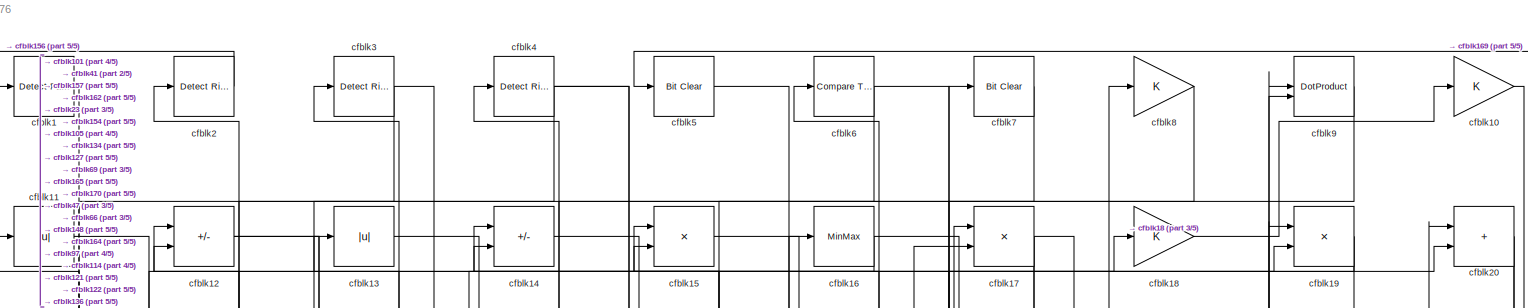
[diagram: root canvas - part 1/5, full width, top band]
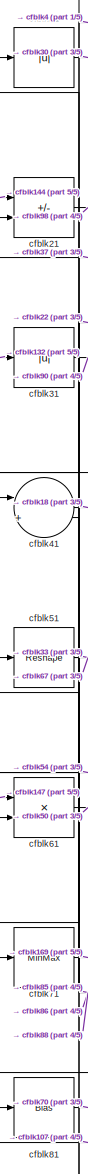
[diagram: root canvas - part 2/5, top left region]
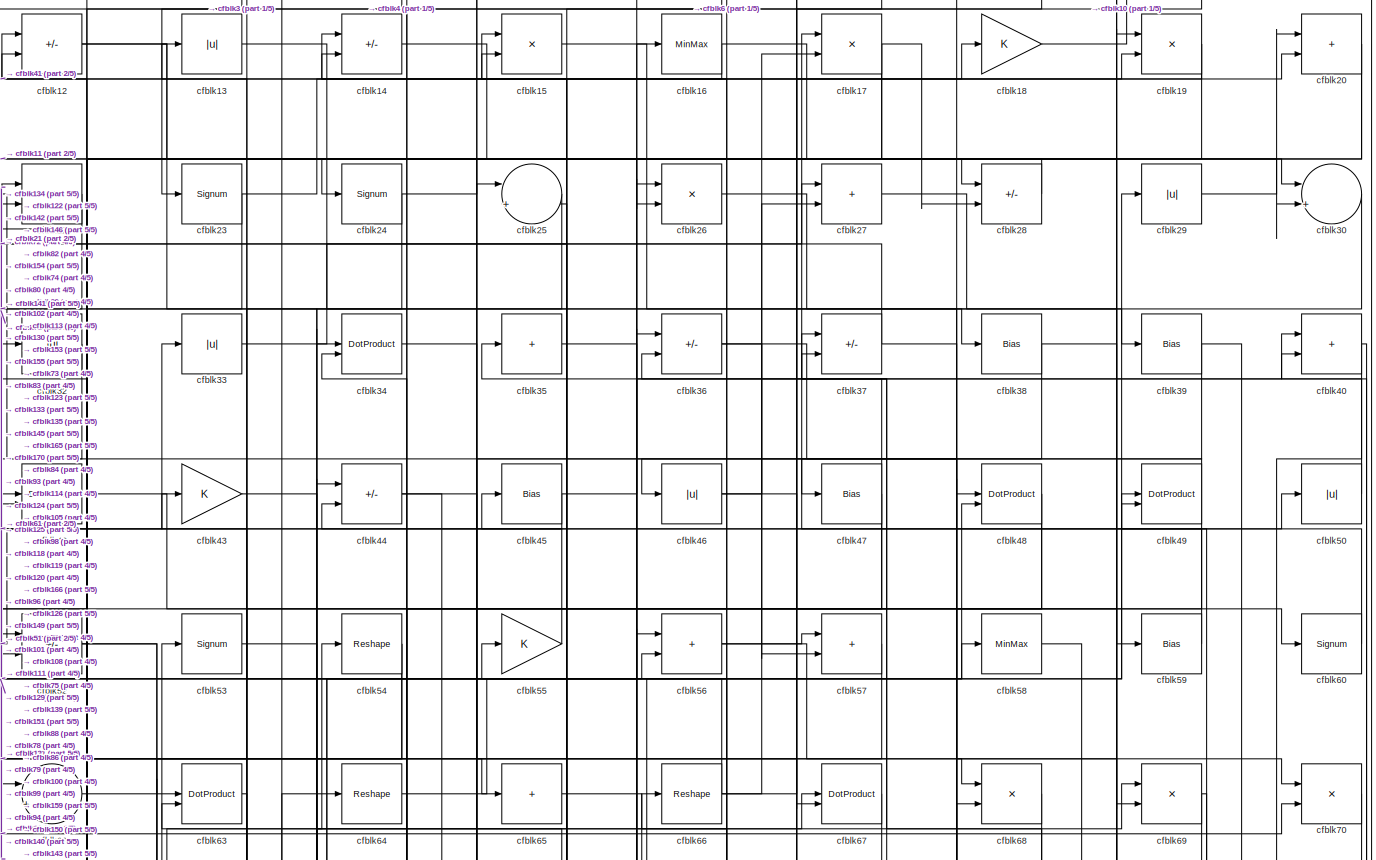
[diagram: root canvas - part 3/5, full width, top band]
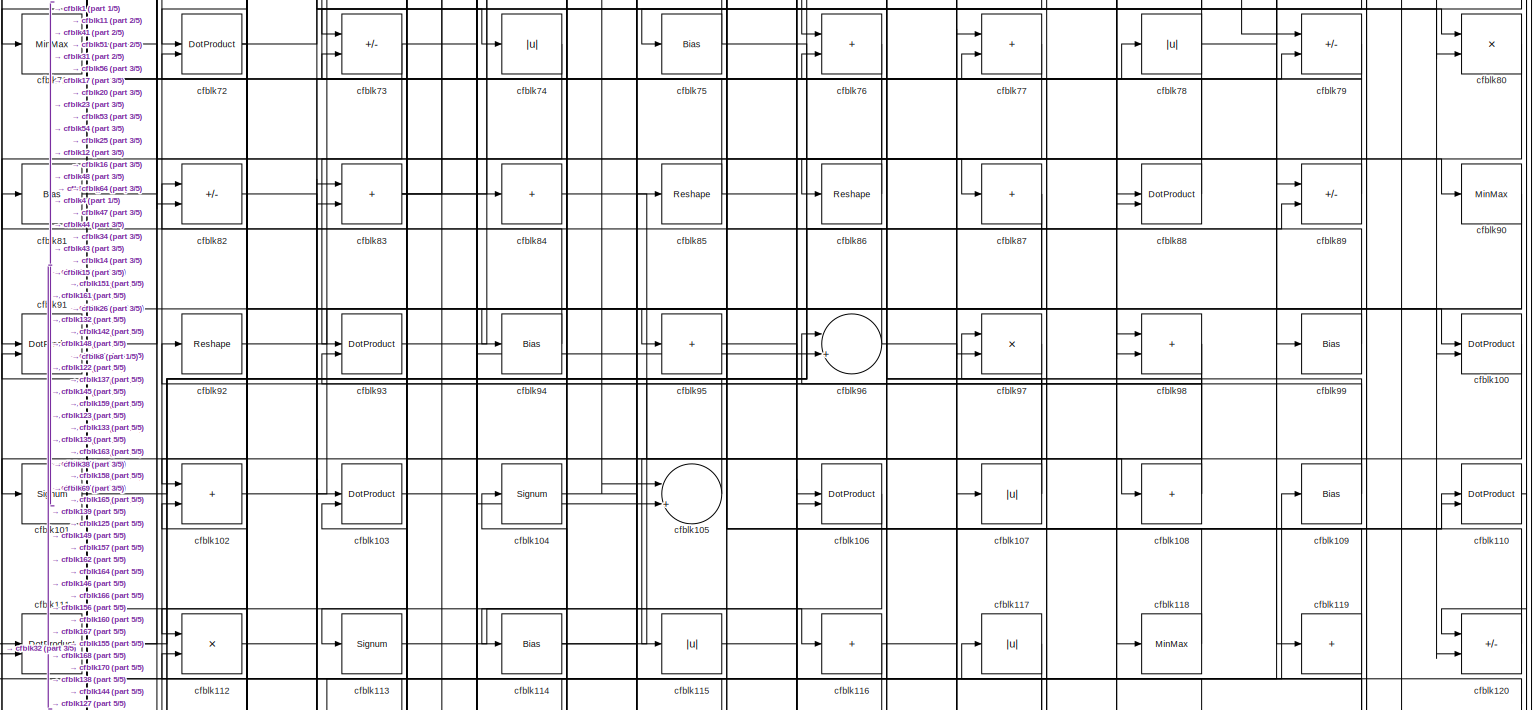
[diagram: root canvas - part 4/5, full width, middle band]
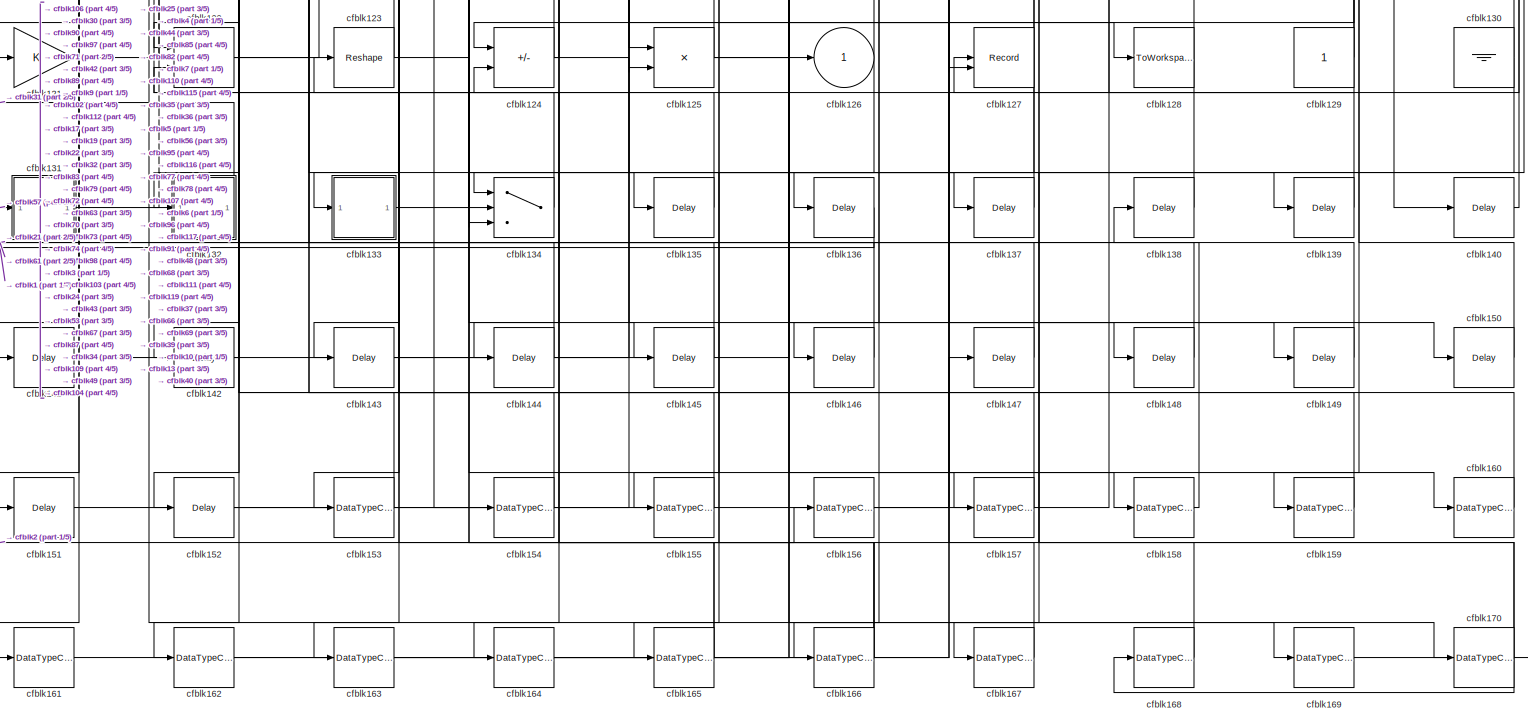
[diagram: root canvas - part 5/5, full width, bottom band]
MODEL slx_1f1a1caf4376
KIND model
CONFIG AbsTol = auto
CONFIG EnableMultiTasking = off
CONFIG FixedStep = auto
CONFIG MaxStep = auto
CONFIG MinStep = auto
CONFIG RelTol = 1e-3
CONFIG SampleTimeConstraint = Unconstrained
CONFIG SolverName = VariableStepAuto
CONFIG StartTime = 0.0
CONFIG StopTime = 10.0
BLOCK [Reference] cfblk1  REF=hdlsllib/Logic and Bit
Operations/Detect Fall
Negative
  SourceBlock = hdlsllib/Logic and Bit\nOperations/Detect Fall\nNegative
  SourceType = Detect Fall Negative
BLOCK [Gain] cfblk10
BLOCK [DotProduct] cfblk100
  OutDataTypeStr = Inherit: Inherit via internal rule
BLOCK [Signum] cfblk101
BLOCK [Sum] cfblk102
  IconShape = rectangular
BLOCK [DotProduct] cfblk103
  OutDataTypeStr = Inherit: Inherit via internal rule
BLOCK [Signum] cfblk104
BLOCK [Sum] cfblk105
  Inputs = |++
BLOCK [DotProduct] cfblk106
  OutDataTypeStr = Inherit: Inherit via internal rule
BLOCK [Abs] cfblk107
  SaturateOnIntegerOverflow = off
BLOCK [Sum] cfblk108
  IconShape = rectangular
  Inputs = +
BLOCK [Bias] cfblk109
  Bias = 0.0
  SaturateOnIntegerOverflow = off
BLOCK [Abs] cfblk11
  SaturateOnIntegerOverflow = off
BLOCK [DotProduct] cfblk110
  OutDataTypeStr = Inherit: Inherit via internal rule
BLOCK [DotProduct] cfblk111
  OutDataTypeStr = Inherit: Inherit via internal rule
BLOCK [Product] cfblk112
  Inputs = */
  RndMeth = Zero
  SaturateOnIntegerOverflow = on
BLOCK [Signum] cfblk113
BLOCK [Bias] cfblk114
  Bias = 0.0
  SaturateOnIntegerOverflow = off
BLOCK [Abs] cfblk115
  SaturateOnIntegerOverflow = off
BLOCK [Sum] cfblk116
  IconShape = rectangular
  Inputs = +
BLOCK [Abs] cfblk117
  SaturateOnIntegerOverflow = off
BLOCK [MinMax] cfblk118
BLOCK [Sum] cfblk119
  IconShape = rectangular
  Inputs = +
BLOCK [Sum] cfblk12
  IconShape = rectangular
  Inputs = +-
BLOCK [Sum] cfblk120
  IconShape = rectangular
  Inputs = +-
BLOCK [Gain] cfblk121
BLOCK [Product] cfblk122
  Inputs = */
  RndMeth = Zero
  SaturateOnIntegerOverflow = on
BLOCK [Reshape] cfblk123
BLOCK [Sum] cfblk124
  IconShape = rectangular
  Inputs = +-
BLOCK [Product] cfblk125
  Inputs = */
  RndMeth = Zero
  SaturateOnIntegerOverflow = on
BLOCK [Outport] cfblk126
  VectorParamsAs1DForOutWhenUnconnected = off
BLOCK [Record] cfblk127
  CompatibilityTag = XY
  FileSettingsInternal = {"entries":[{"content":{"excelSettings":{"content":{},"type":"Streamout.ExcelSettings"}},"type":"Streamout.FileSettingStorage","uuid":""}],"packageUris":["http:\/\/schema.mathworks.com\/mf0\/streamout_blocks\/R2020a"],"version":"1.0"}
  Layout = [1 1]
  SignalsInternal = {"entries":[{"content":{"signals":[{"content":{"blockPath":[],"dimensions":[1],"domain":"","lineColor":"#a2142f","plots":[1],"port":1,"sid":[""],"signalID":4701,"signalName":"cfblk110"},"type":"RecordBlkView.Signal","uuid":""},{"content":{"blockPath":[],"dimensions":[1],"domain":"","lineColor":"#139fff","plots":[1],"port":2,"sid":[""],"signalID":4705,"signalName":"cfblk4"},"type":"RecordBlkView.Si...<+162ch>
  VisualizationBindings = {"xyplotplugin":{"info":[{"series":[{"bindingParametersList":[{"parameter":"X-Axis","signalID":4701,"signalName":"cfblk110"},{"parameter":"Y-Axis","signalID":4705,"signalName":"cfblk4"}],"seriesID":2669}],"subplotID":1}]}}
  st = -1
BLOCK [ToWorkspace] cfblk128
  MaxDataPoints = inf
  SampleTime = -1
  SaveFormat = Timeseries
  VariableName = simout
BLOCK [Constant] cfblk129
  SampleTime = -1
BLOCK [Abs] cfblk13
  SaturateOnIntegerOverflow = off
BLOCK [Ground] cfblk130
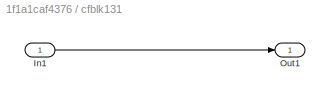
BLOCK [SubSystem] cfblk131
  LibrarySourceBlock = hdlsllib/Ports &\nSubsystems/Subsystem
BLOCK [Inport] cfblk131/In1
BLOCK [Outport] cfblk131/Out1
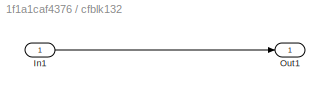
BLOCK [SubSystem] cfblk132
  LibrarySourceBlock = hdlsllib/Ports &\nSubsystems/Subsystem
BLOCK [Inport] cfblk132/In1
BLOCK [Outport] cfblk132/Out1
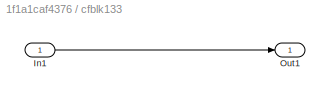
BLOCK [SubSystem] cfblk133
  LibrarySourceBlock = hdlsllib/Ports &\nSubsystems/Subsystem
BLOCK [Inport] cfblk133/In1
BLOCK [Outport] cfblk133/Out1
BLOCK [Switch] cfblk134
  InputSameDT = off
  SaturateOnIntegerOverflow = off
BLOCK [Delay] cfblk135
  InputPortMap = u0
  SampleTime = 1
BLOCK [Delay] cfblk136
  InputPortMap = u0
  SampleTime = 1
BLOCK [Delay] cfblk137
  InputPortMap = u0
  SampleTime = 1
BLOCK [Delay] cfblk138
  InputPortMap = u0
  SampleTime = 1
BLOCK [Delay] cfblk139
  InputPortMap = u0
  SampleTime = 1
BLOCK [Sum] cfblk14
  IconShape = rectangular
  Inputs = +-
BLOCK [Delay] cfblk140
  InputPortMap = u0
  SampleTime = 1
BLOCK [Delay] cfblk141
  InputPortMap = u0
  SampleTime = 1
BLOCK [Delay] cfblk142
  InputPortMap = u0
  SampleTime = 1
BLOCK [Delay] cfblk143
  InputPortMap = u0
  SampleTime = 1
BLOCK [Delay] cfblk144
  InputPortMap = u0
  SampleTime = 1
BLOCK [Delay] cfblk145
  InputPortMap = u0
  SampleTime = 1
BLOCK [Delay] cfblk146
  InputPortMap = u0
  SampleTime = 1
BLOCK [Delay] cfblk147
  InputPortMap = u0
  SampleTime = 1
BLOCK [Delay] cfblk148
  InputPortMap = u0
  SampleTime = 1
BLOCK [Delay] cfblk149
  InputPortMap = u0
  SampleTime = 1
BLOCK [Product] cfblk15
  Inputs = */
  RndMeth = Zero
  SaturateOnIntegerOverflow = on
BLOCK [Delay] cfblk150
  InputPortMap = u0
  SampleTime = 1
BLOCK [Delay] cfblk151
  InputPortMap = u0
  SampleTime = 1
BLOCK [Delay] cfblk152
  InputPortMap = u0
  SampleTime = 1
BLOCK [DataTypeConversion] cfblk153
  OutDataTypeStr = uint8
  RndMeth = Floor
  SaturateOnIntegerOverflow = off
BLOCK [DataTypeConversion] cfblk154
  OutDataTypeStr = uint8
  RndMeth = Floor
  SaturateOnIntegerOverflow = off
BLOCK [DataTypeConversion] cfblk155
  OutDataTypeStr = uint8
  RndMeth = Floor
  SaturateOnIntegerOverflow = off
BLOCK [DataTypeConversion] cfblk156
  OutDataTypeStr = uint8
  RndMeth = Floor
  SaturateOnIntegerOverflow = off
BLOCK [DataTypeConversion] cfblk157
  OutDataTypeStr = uint8
  RndMeth = Floor
  SaturateOnIntegerOverflow = off
BLOCK [DataTypeConversion] cfblk158
  OutDataTypeStr = uint8
  RndMeth = Floor
  SaturateOnIntegerOverflow = off
BLOCK [DataTypeConversion] cfblk159
  OutDataTypeStr = uint8
  RndMeth = Floor
  SaturateOnIntegerOverflow = off
BLOCK [MinMax] cfblk16
BLOCK [DataTypeConversion] cfblk160
  OutDataTypeStr = uint8
  RndMeth = Floor
  SaturateOnIntegerOverflow = off
BLOCK [DataTypeConversion] cfblk161
  OutDataTypeStr = uint8
  RndMeth = Floor
  SaturateOnIntegerOverflow = off
BLOCK [DataTypeConversion] cfblk162
  OutDataTypeStr = uint8
  RndMeth = Floor
  SaturateOnIntegerOverflow = off
BLOCK [DataTypeConversion] cfblk163
  OutDataTypeStr = uint8
  RndMeth = Floor
  SaturateOnIntegerOverflow = off
BLOCK [DataTypeConversion] cfblk164
  OutDataTypeStr = boolean
  RndMeth = Floor
  SaturateOnIntegerOverflow = off
BLOCK [DataTypeConversion] cfblk165
  RndMeth = Floor
  SaturateOnIntegerOverflow = off
BLOCK [DataTypeConversion] cfblk166
  RndMeth = Floor
  SaturateOnIntegerOverflow = off
BLOCK [DataTypeConversion] cfblk167
  OutDataTypeStr = uint8
  RndMeth = Floor
  SaturateOnIntegerOverflow = off
BLOCK [DataTypeConversion] cfblk168
  OutDataTypeStr = uint8
  RndMeth = Floor
  SaturateOnIntegerOverflow = off
BLOCK [DataTypeConversion] cfblk169
  OutDataTypeStr = boolean
  RndMeth = Floor
  SaturateOnIntegerOverflow = off
BLOCK [Product] cfblk17
  Inputs = */
  RndMeth = Zero
  SaturateOnIntegerOverflow = on
BLOCK [DataTypeConversion] cfblk170
  RndMeth = Floor
  SaturateOnIntegerOverflow = off
BLOCK [Gain] cfblk18
BLOCK [Product] cfblk19
  Inputs = */
  RndMeth = Zero
  SaturateOnIntegerOverflow = on
BLOCK [Reference] cfblk2  REF=hdlsllib/Logic and Bit
Operations/Detect Rise
Positive
  SourceBlock = hdlsllib/Logic and Bit\nOperations/Detect Rise\nPositive
  SourceType = Detect Rise Positive
BLOCK [Sum] cfblk20
  IconShape = rectangular
BLOCK [Sum] cfblk21
  IconShape = rectangular
  Inputs = +-
BLOCK [Product] cfblk22
  Inputs = */
  RndMeth = Zero
  SaturateOnIntegerOverflow = on
BLOCK [Signum] cfblk23
BLOCK [Signum] cfblk24
BLOCK [Sum] cfblk25
  Inputs = |++
BLOCK [Product] cfblk26
  Inputs = */
  RndMeth = Zero
  SaturateOnIntegerOverflow = on
BLOCK [Sum] cfblk27
  IconShape = rectangular
BLOCK [Sum] cfblk28
  IconShape = rectangular
  Inputs = +-
BLOCK [Abs] cfblk29
  SaturateOnIntegerOverflow = off
BLOCK [Reference] cfblk3  REF=hdlsllib/Logic and Bit
Operations/Detect Rise
Nonnegative
  SourceBlock = hdlsllib/Logic and Bit\nOperations/Detect Rise\nNonnegative
  SourceType = Detect Rise Nonnegative
BLOCK [Sum] cfblk30
  Inputs = |++
BLOCK [Abs] cfblk31
  SaturateOnIntegerOverflow = off
BLOCK [Abs] cfblk32
  SaturateOnIntegerOverflow = off
BLOCK [Abs] cfblk33
  SaturateOnIntegerOverflow = off
BLOCK [DotProduct] cfblk34
  OutDataTypeStr = Inherit: Inherit via internal rule
BLOCK [Sum] cfblk35
  IconShape = rectangular
  Inputs = +
BLOCK [Sum] cfblk36
  IconShape = rectangular
  Inputs = +-
BLOCK [Sum] cfblk37
  IconShape = rectangular
  Inputs = +-
BLOCK [Bias] cfblk38
  Bias = 0.0
  SaturateOnIntegerOverflow = off
BLOCK [Bias] cfblk39
  Bias = 0.0
  SaturateOnIntegerOverflow = off
BLOCK [Reference] cfblk4  REF=hdlsllib/Logic and Bit
Operations/Detect Rise
Nonnegative
  SourceBlock = hdlsllib/Logic and Bit\nOperations/Detect Rise\nNonnegative
  SourceType = Detect Rise Nonnegative
BLOCK [Sum] cfblk40
  IconShape = rectangular
BLOCK [Sum] cfblk41
  Inputs = |++
BLOCK [DotProduct] cfblk42
  OutDataTypeStr = Inherit: Inherit via internal rule
BLOCK [Gain] cfblk43
BLOCK [Sum] cfblk44
  IconShape = rectangular
  Inputs = +-
BLOCK [Bias] cfblk45
  Bias = 0.0
  SaturateOnIntegerOverflow = off
BLOCK [Abs] cfblk46
  SaturateOnIntegerOverflow = off
BLOCK [Bias] cfblk47
  Bias = 0.0
  SaturateOnIntegerOverflow = off
BLOCK [DotProduct] cfblk48
  OutDataTypeStr = Inherit: Inherit via internal rule
BLOCK [DotProduct] cfblk49
  OutDataTypeStr = Inherit: Inherit via internal rule
BLOCK [Reference] cfblk5  REF=simulink/Logic and Bit
Operations/Bit Clear
  LibrarySourceBlock = hdlsllib/Logic and Bit\nOperations/Bit Clear
  SourceBlock = simulink/Logic and Bit\nOperations/Bit Clear
  SourceType = Bit Clear
BLOCK [Abs] cfblk50
  SaturateOnIntegerOverflow = off
BLOCK [Reshape] cfblk51
BLOCK [Sum] cfblk52
  IconShape = rectangular
  Inputs = +-
BLOCK [Signum] cfblk53
BLOCK [Reshape] cfblk54
BLOCK [Gain] cfblk55
BLOCK [Sum] cfblk56
  IconShape = rectangular
BLOCK [Sum] cfblk57
  IconShape = rectangular
BLOCK [MinMax] cfblk58
BLOCK [Bias] cfblk59
  Bias = 0.0
  SaturateOnIntegerOverflow = off
BLOCK [Reference] cfblk6  REF=hdlsllib/Logic and Bit
Operations/Compare
To Zero
  SourceBlock = hdlsllib/Logic and Bit\nOperations/Compare\nTo Zero
  SourceType = Compare To Zero
BLOCK [Signum] cfblk60
BLOCK [Product] cfblk61
  Inputs = */
  RndMeth = Zero
  SaturateOnIntegerOverflow = on
BLOCK [Sum] cfblk62
  Inputs = |++
BLOCK [DotProduct] cfblk63
  OutDataTypeStr = Inherit: Inherit via internal rule
BLOCK [Reshape] cfblk64
BLOCK [Sum] cfblk65
  IconShape = rectangular
  Inputs = +
BLOCK [Reshape] cfblk66
BLOCK [DotProduct] cfblk67
  OutDataTypeStr = Inherit: Inherit via internal rule
BLOCK [Product] cfblk68
  Inputs = */
  RndMeth = Zero
  SaturateOnIntegerOverflow = on
BLOCK [Product] cfblk69
  Inputs = */
  RndMeth = Zero
  SaturateOnIntegerOverflow = on
BLOCK [Reference] cfblk7  REF=simulink/Logic and Bit
Operations/Bit Clear
  LibrarySourceBlock = hdlsllib/Logic and Bit\nOperations/Bit Clear
  SourceBlock = simulink/Logic and Bit\nOperations/Bit Clear
  SourceType = Bit Clear
BLOCK [Product] cfblk70
  Inputs = */
  RndMeth = Zero
  SaturateOnIntegerOverflow = on
BLOCK [MinMax] cfblk71
BLOCK [DotProduct] cfblk72
  OutDataTypeStr = Inherit: Inherit via internal rule
BLOCK [Sum] cfblk73
  IconShape = rectangular
  Inputs = +-
BLOCK [Abs] cfblk74
  SaturateOnIntegerOverflow = off
BLOCK [Bias] cfblk75
  Bias = 0.0
  SaturateOnIntegerOverflow = off
BLOCK [Sum] cfblk76
  IconShape = rectangular
BLOCK [Sum] cfblk77
  IconShape = rectangular
BLOCK [Abs] cfblk78
  SaturateOnIntegerOverflow = off
BLOCK [Sum] cfblk79
  IconShape = rectangular
  Inputs = +-
BLOCK [Gain] cfblk8
BLOCK [Product] cfblk80
  Inputs = */
  RndMeth = Zero
  SaturateOnIntegerOverflow = on
BLOCK [Bias] cfblk81
  Bias = 0.0
  SaturateOnIntegerOverflow = off
BLOCK [Sum] cfblk82
  IconShape = rectangular
  Inputs = +-
BLOCK [Sum] cfblk83
  IconShape = rectangular
BLOCK [Sum] cfblk84
  IconShape = rectangular
  Inputs = +
BLOCK [Reshape] cfblk85
BLOCK [Reshape] cfblk86
BLOCK [Sum] cfblk87
  IconShape = rectangular
  Inputs = +
BLOCK [DotProduct] cfblk88
  OutDataTypeStr = Inherit: Inherit via internal rule
BLOCK [Sum] cfblk89
  IconShape = rectangular
  Inputs = +-
BLOCK [DotProduct] cfblk9
  OutDataTypeStr = Inherit: Inherit via internal rule
BLOCK [MinMax] cfblk90
BLOCK [DotProduct] cfblk91
  OutDataTypeStr = Inherit: Inherit via internal rule
BLOCK [Reshape] cfblk92
BLOCK [DotProduct] cfblk93
  OutDataTypeStr = Inherit: Inherit via internal rule
BLOCK [Bias] cfblk94
  Bias = 0.0
  SaturateOnIntegerOverflow = off
BLOCK [Sum] cfblk95
  IconShape = rectangular
  Inputs = +
BLOCK [Sum] cfblk96
  Inputs = |++
BLOCK [Product] cfblk97
  Inputs = */
  RndMeth = Zero
  SaturateOnIntegerOverflow = on
BLOCK [Sum] cfblk98
  IconShape = rectangular
BLOCK [Bias] cfblk99
  Bias = 0.0
  SaturateOnIntegerOverflow = off
LINE cfblk100:1 -> cfblk115:1
LINE cfblk101:1 -> cfblk29:1
LINE cfblk102:1 -> cfblk54:1
LINE cfblk103:1 -> cfblk158:1
LINE cfblk104:1 -> cfblk139:1
LINE cfblk105:1 -> cfblk4:1
LINE cfblk106:1 -> cfblk161:1
NET cfblk107:1 -> cfblk81:1, cfblk97:1
NET cfblk108:1 -> cfblk14:1, cfblk96:1
NET cfblk109:1 -> cfblk52:2, cfblk92:1
LINE cfblk10:1 -> cfblk136:1
LINE cfblk110:1 -> cfblk127:1
NET cfblk111:1 -> cfblk26:1, cfblk58:1
LINE cfblk112:1 -> cfblk83:2
LINE cfblk113:1 -> cfblk116:1
NET cfblk114:1 -> cfblk78:1, cfblk8:1
LINE cfblk115:1 -> cfblk149:1
NET cfblk116:1 -> cfblk110:2, cfblk164:1
LINE cfblk117:1 -> cfblk155:1
LINE cfblk118:1 -> cfblk55:1
NET cfblk119:1 -> cfblk144:1, cfblk14:2
LINE cfblk11:1 -> cfblk30:2
LINE cfblk120:1 -> cfblk22:1
LINE cfblk121:1 -> cfblk9:1
NET cfblk122:1 -> cfblk79:2, cfblk9:2
NET cfblk123:1 -> cfblk69:1, cfblk72:2
NET cfblk124:1 -> cfblk109:1, cfblk150:1, cfblk34:2
NET cfblk125:1 -> cfblk110:1, cfblk128:1, cfblk82:1
NET cfblk129:1 -> cfblk122:2, cfblk37:1, cfblk66:1
NET cfblk12:1 -> cfblk28:1, cfblk84:1
NET cfblk130:1 -> cfblk13:1, cfblk167:1
LINE cfblk131/In1:1 -> cfblk131/Out1:1
LINE cfblk131:1 -> cfblk89:2
LINE cfblk132/In1:1 -> cfblk132/Out1:1
LINE cfblk132:1 -> cfblk31:1
LINE cfblk133/In1:1 -> cfblk133/Out1:1
LINE cfblk133:1 -> cfblk67:1
LINE cfblk134:1 -> cfblk42:1
LINE cfblk135:1 -> cfblk73:2
LINE cfblk136:1 -> cfblk1:1
LINE cfblk137:1 -> cfblk91:2
LINE cfblk138:1 -> cfblk111:1
LINE cfblk139:1 -> cfblk48:1
LINE cfblk13:1 -> cfblk38:1
LINE cfblk140:1 -> cfblk40:2
LINE cfblk141:1 -> cfblk25:1
LINE cfblk142:1 -> cfblk112:2
LINE cfblk143:1 -> cfblk36:1
LINE cfblk144:1 -> cfblk21:1
LINE cfblk145:1 -> cfblk83:1
LINE cfblk146:1 -> cfblk22:2
LINE cfblk147:1 -> cfblk61:1
LINE cfblk148:1 -> cfblk102:2
LINE cfblk149:1 -> cfblk56:1
LINE cfblk14:1 -> cfblk30:1
LINE cfblk150:1 -> cfblk49:2
LINE cfblk151:1 -> cfblk68:2
LINE cfblk152:1 -> cfblk85:1
LINE cfblk153:1 -> cfblk32:1
LINE cfblk154:1 -> cfblk63:1
LINE cfblk155:1 -> cfblk63:2
LINE cfblk156:1 -> cfblk107:1
LINE cfblk157:1 -> cfblk2:1
LINE cfblk158:1 -> cfblk138:1
LINE cfblk159:1 -> cfblk103:1
LINE cfblk15:1 -> cfblk39:1
LINE cfblk160:1 -> cfblk103:2
LINE cfblk161:1 -> cfblk147:1
LINE cfblk162:1 -> cfblk106:1
LINE cfblk163:1 -> cfblk106:2
LINE cfblk164:1 -> cfblk7:1
NET cfblk165:1 -> cfblk104:1, cfblk44:1
NET cfblk166:1 -> cfblk123:1, cfblk124:2, cfblk35:1
LINE cfblk167:1 -> cfblk77:1
LINE cfblk168:1 -> cfblk77:2
LINE cfblk169:1 -> cfblk5:1
NET cfblk16:1 -> cfblk15:2, cfblk59:1
NET cfblk170:1 -> cfblk117:1, cfblk168:1, cfblk34:1
NET cfblk17:1 -> cfblk122:1, cfblk28:2, cfblk82:2
LINE cfblk18:1 -> cfblk10:1
NET cfblk19:1 -> cfblk12:2, cfblk142:1
LINE cfblk1:1 -> cfblk101:1
NET cfblk20:1 -> cfblk102:1, cfblk52:1
LINE cfblk21:1 -> cfblk98:1
LINE cfblk22:1 -> cfblk71:1
NET cfblk23:1 -> cfblk20:2, cfblk72:1
NET cfblk24:1 -> cfblk134:3, cfblk26:2
LINE cfblk25:1 -> cfblk73:1
LINE cfblk26:1 -> cfblk88:1
LINE cfblk27:1 -> cfblk99:1
LINE cfblk28:1 -> cfblk24:1
LINE cfblk29:1 -> cfblk20:1
LINE cfblk2:1 -> cfblk156:1
LINE cfblk30:1 -> cfblk141:1
LINE cfblk31:1 -> cfblk90:1
LINE cfblk32:1 -> cfblk111:2
LINE cfblk33:1 -> cfblk27:1
LINE cfblk34:1 -> cfblk98:2
LINE cfblk35:1 -> cfblk126:1
NET cfblk36:1 -> cfblk118:1, cfblk57:2
NET cfblk37:1 -> cfblk21:2, cfblk70:1
NET cfblk38:1 -> cfblk100:2, cfblk46:1
NET cfblk39:1 -> cfblk125:2, cfblk140:1
NET cfblk3:1 -> cfblk154:1, cfblk23:1
NET cfblk40:1 -> cfblk120:1, cfblk120:2
LINE cfblk41:1 -> cfblk18:1
LINE cfblk42:1 -> cfblk89:1
LINE cfblk43:1 -> cfblk145:1
NET cfblk44:1 -> cfblk105:1, cfblk125:1
NET cfblk45:1 -> cfblk40:1, cfblk44:2
NET cfblk46:1 -> cfblk27:2, cfblk60:1
NET cfblk47:1 -> cfblk114:1, cfblk62:1, cfblk6:1
NET cfblk48:1 -> cfblk113:1, cfblk88:2
NET cfblk49:1 -> cfblk124:1, cfblk47:1
NET cfblk4:1 -> cfblk127:2, cfblk41:1, cfblk69:2
LINE cfblk50:1 -> cfblk25:2
NET cfblk51:1 -> cfblk33:1, cfblk67:2
NET cfblk52:1 -> cfblk74:1, cfblk80:2
LINE cfblk53:1 -> cfblk135:1
NET cfblk54:1 -> cfblk61:2, cfblk62:2
LINE cfblk55:1 -> cfblk45:1
NET cfblk56:1 -> cfblk57:1, cfblk68:1
LINE cfblk57:1 -> cfblk131:1
LINE cfblk58:1 -> cfblk79:1
LINE cfblk59:1 -> cfblk17:1
LINE cfblk5:1 -> cfblk170:1
LINE cfblk60:1 -> cfblk12:1
LINE cfblk61:1 -> cfblk50:1
LINE cfblk62:1 -> cfblk65:1
LINE cfblk63:1 -> cfblk153:1
LINE cfblk64:1 -> cfblk49:1
LINE cfblk65:1 -> cfblk76:1
NET cfblk66:1 -> cfblk17:2, cfblk19:2, cfblk3:1
LINE cfblk67:1 -> cfblk75:1
LINE cfblk68:1 -> cfblk86:1
NET cfblk69:1 -> cfblk159:1, cfblk94:1
NET cfblk6:1 -> cfblk148:1, cfblk162:1
LINE cfblk70:1 -> cfblk143:1
LINE cfblk71:1 -> cfblk169:1
NET cfblk72:1 -> cfblk132:1, cfblk80:1
NET cfblk73:1 -> cfblk105:2, cfblk91:1
LINE cfblk74:1 -> cfblk163:1
NET cfblk75:1 -> cfblk119:1, cfblk43:1
LINE cfblk76:1 -> cfblk93:1
LINE cfblk77:1 -> cfblk166:1
NET cfblk78:1 -> cfblk146:1, cfblk19:1, cfblk37:2
LINE cfblk79:1 -> cfblk76:2
LINE cfblk7:1 -> cfblk165:1
LINE cfblk80:1 -> cfblk95:1
LINE cfblk81:1 -> cfblk70:2
LINE cfblk82:1 -> cfblk137:1
NET cfblk83:1 -> cfblk16:1, cfblk64:1, cfblk96:2
LINE cfblk84:1 -> cfblk108:1
NET cfblk85:1 -> cfblk11:1, cfblk87:1
LINE cfblk86:1 -> cfblk51:1
NET cfblk87:1 -> cfblk134:2, cfblk152:1
LINE cfblk88:1 -> cfblk41:2
LINE cfblk89:1 -> cfblk53:1
LINE cfblk8:1 -> cfblk97:2
NET cfblk90:1 -> cfblk112:1, cfblk151:1
LINE cfblk91:1 -> cfblk56:2
LINE cfblk92:1 -> cfblk100:1
LINE cfblk93:1 -> cfblk48:2
LINE cfblk94:1 -> cfblk42:2
LINE cfblk95:1 -> cfblk157:1
NET cfblk96:1 -> cfblk15:1, cfblk160:1
LINE cfblk97:1 -> cfblk121:1
NET cfblk98:1 -> cfblk133:1, cfblk93:2
LINE cfblk99:1 -> cfblk36:2
LINE cfblk9:1 -> cfblk134:1
note: NET lines group one-source signal fan-out (src -> all destinations, sorted); 1:1 wires keep LINE
